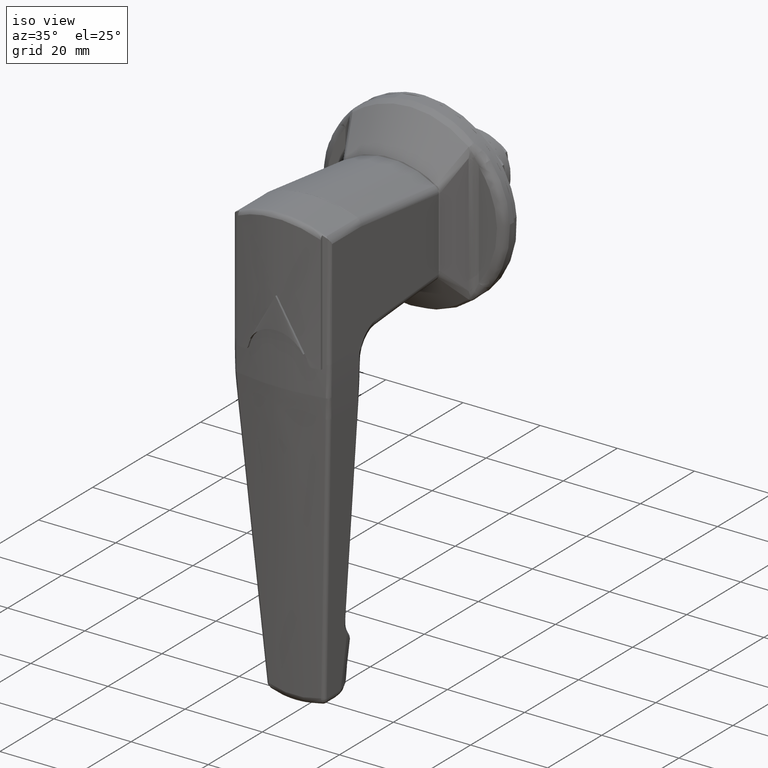
[diagram: clean part render]
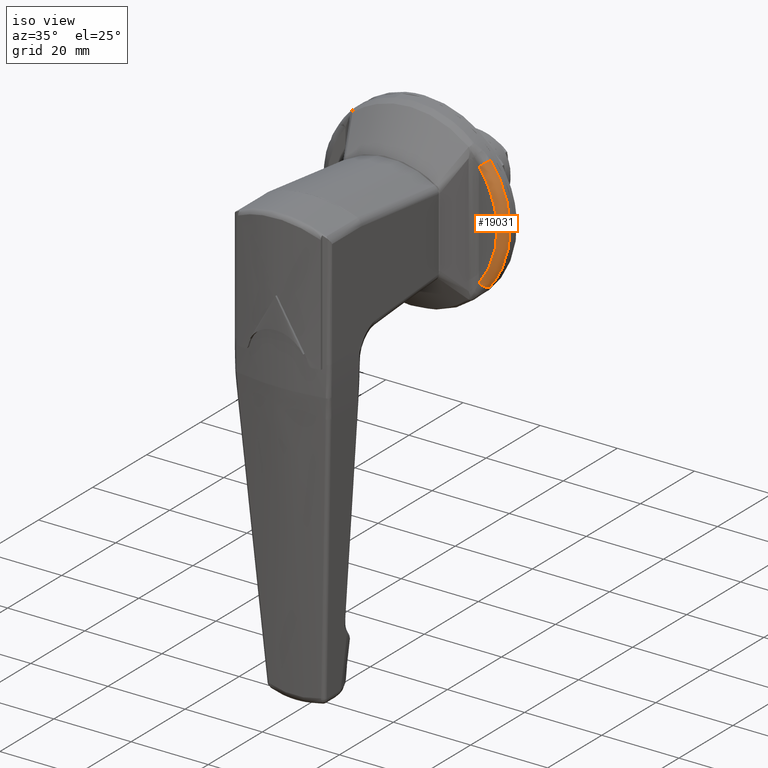
[diagram: same view with one face highlighted and labeled with its STEP entity id]
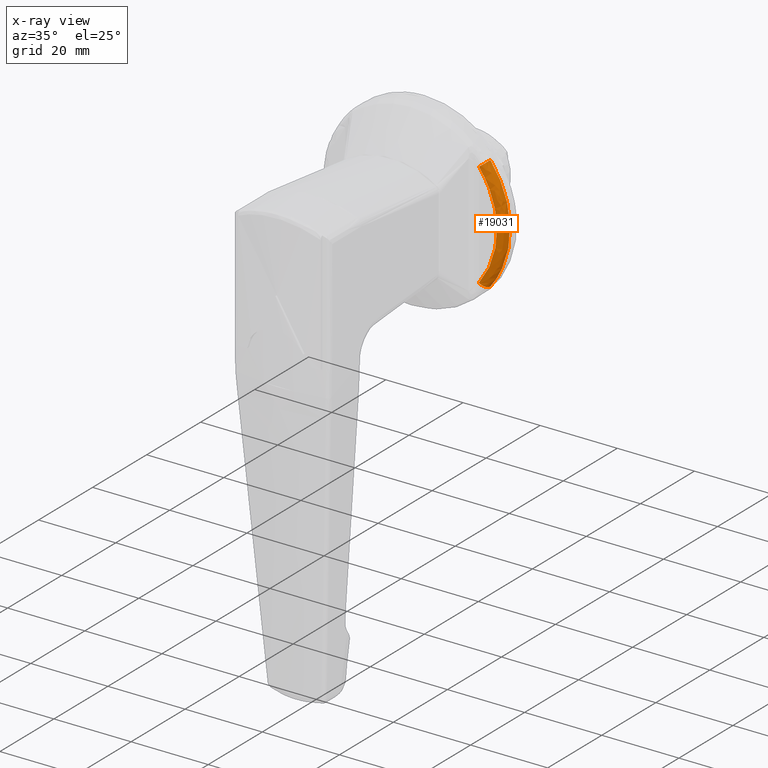
[diagram: x-ray of the same camera — body ghosted, the highlighted face saturated]
A machine part, iso view. The second image highlights one B-rep face of the part: STEP entity #19031.
The next image is the same camera in x-ray: the body ghosted, the highlighted face saturated — about 0% of this face is hidden behind the body in this view.
In plain terms, the highlighted face is a freeform B-spline surface patch.
Its self-contained STEP definition (entity closure, byte-faithful):
#15714=CARTESIAN_POINT('',(-2.500000000000000,-23.977157182302481,1.046868403932756));
#15715=VERTEX_POINT('',#15714);
#15721=CARTESIAN_POINT('',(-2.500000000000000,-18.877897728856649,-14.819749570719379));
#15722=VERTEX_POINT('',#15721);
#15723=CARTESIAN_POINT('',(-2.500000000000000,-23.977157182302484,1.046868403932756));
#15724=CARTESIAN_POINT('',(-2.500000000000000,-24.364748822760749,-7.830413259069376));
#15725=CARTESIAN_POINT('',(-2.500000000000000,-18.877897728856649,-14.819749570719379));
#15733=(BOUNDED_CURVE()B_SPLINE_CURVE(2,(#15723,#15724,#15725),.UNSPECIFIED.,.F.,.U.)B_SPLINE_CURVE_WITH_KNOTS((3,3),(0.468433952568478,1.0),.UNSPECIFIED.)CURVE()GEOMETRIC_REPRESENTATION_ITEM()RATIONAL_B_SPLINE_CURVE((0.893714847788104,0.886552680875156,1.0))REPRESENTATION_ITEM(''));
#15734=EDGE_CURVE('',#15715,#15722,#15733,.T.);
#15989=CARTESIAN_POINT('',(-2.500000000000000,-18.877897728162552,14.819749571603561));
#15990=VERTEX_POINT('',#15989);
#16002=CARTESIAN_POINT('',(-2.500000000000000,-18.877897728162552,14.819749571603561));
#16003=CARTESIAN_POINT('',(-2.500000000000000,-23.640711594829366,8.752716344166684));
#16004=CARTESIAN_POINT('',(-2.500000000000000,-23.977157182302488,1.046868403932756));
#16012=(BOUNDED_CURVE()B_SPLINE_CURVE(2,(#16002,#16003,#16004),.UNSPECIFIED.,.F.,.U.)B_SPLINE_CURVE_WITH_KNOTS((3,3),(0.0,0.468433952568478),.UNSPECIFIED.)CURVE()GEOMETRIC_REPRESENTATION_ITEM()RATIONAL_B_SPLINE_CURVE((1.0,0.900026391146071,0.893714847788104))REPRESENTATION_ITEM(''));
#16013=EDGE_CURVE('',#15990,#15715,#16012,.T.);
#18803=CARTESIAN_POINT('',(-4.500000000000000,-17.304739584785249,-13.584770439826100));
#18804=VERTEX_POINT('',#18803);
#18805=CARTESIAN_POINT('',(-2.500000000000000,-18.877897728856620,-14.819749570719370));
#18806=CARTESIAN_POINT('',(-4.500000000000002,-18.877897728856617,-14.819749570719377));
#18807=CARTESIAN_POINT('',(-4.500000000000001,-17.304739584785249,-13.584770439826100));
#18815=(BOUNDED_CURVE()B_SPLINE_CURVE(2,(#18805,#18806,#18807),.UNSPECIFIED.,.F.,.U.)CURVE()GEOMETRIC_REPRESENTATION_ITEM()QUASI_UNIFORM_CURVE()RATIONAL_B_SPLINE_CURVE((1.0,0.707106781186548,1.0))REPRESENTATION_ITEM(''));
#18816=EDGE_CURVE('',#15722,#18804,#18815,.T.);
#18981=CARTESIAN_POINT('',(-2.360551457042045,-17.935423397747378,-15.940105902498191));
#18982=CARTESIAN_POINT('',(-2.360551457042046,-32.102191423958956,0.000000410594329));
#18983=CARTESIAN_POINT('',(-2.360551457042046,-17.935422989992215,15.940106361294463));
#18984=CARTESIAN_POINT('',(-4.654672073317955,-18.055275854892908,-16.046624762812023));
#18985=CARTESIAN_POINT('',(-4.654672073317956,-32.316712510893574,0.000000413338104));
#18986=CARTESIAN_POINT('',(-4.654672073317954,-18.055275444412935,16.046625224674187));
#18987=CARTESIAN_POINT('',(-4.495184659409166,-16.340465654535766,-14.522587354260528));
#18988=CARTESIAN_POINT('',(-4.495184659409167,-29.247414168344505,0.000000374081080));
#18989=CARTESIAN_POINT('',(-4.495184659409166,-16.340465283041375,14.522587772257067));
#18997=(BOUNDED_SURFACE()B_SPLINE_SURFACE(2,2,((#18981,#18984,#18987),(#18982,#18985,#18988),(#18983,#18986,#18989)),.UNSPECIFIED.,.F.,.F.,.U.)B_SPLINE_SURFACE_WITH_KNOTS((3,3),(3,3),(0.0,36.487468679805517),(0.0,3.644741586489368),.UNSPECIFIED.)GEOMETRIC_REPRESENTATION_ITEM()RATIONAL_B_SPLINE_SURFACE(((0.842583616226027,0.554461898885857,0.847276896351602),(0.629798303543244,0.414438586952068,0.633306346904423),(0.842583624419761,0.554461904277741,0.847276904590976)))REPRESENTATION_ITEM('')SURFACE());
#18998=CARTESIAN_POINT('',(-4.500000000000000,-17.304739584149001,13.584770440636600));
#18999=VERTEX_POINT('',#18998);
#19000=CARTESIAN_POINT('',(-2.500000000000000,-18.877897728162530,14.819749571603550));
#19001=CARTESIAN_POINT('',(-4.500000000000002,-18.877897728162537,14.819749571603559));
#19002=CARTESIAN_POINT('',(-4.500000000000001,-17.304739584149001,13.584770440636600));
#19010=(BOUNDED_CURVE()B_SPLINE_CURVE(2,(#19000,#19001,#19002),.UNSPECIFIED.,.F.,.U.)CURVE()GEOMETRIC_REPRESENTATION_ITEM()QUASI_UNIFORM_CURVE()RATIONAL_B_SPLINE_CURVE((1.0,0.707106781186548,1.0))REPRESENTATION_ITEM(''));
#19011=EDGE_CURVE('',#15990,#18999,#19010,.T.);
#19012=ORIENTED_EDGE('',*,*,#19011,.T.);
#19013=CARTESIAN_POINT('',(-4.500000000000000,-17.304739584785249,-13.584770439826100));
#19014=CARTESIAN_POINT('',(-4.500000000000000,-27.969216042664154,6.549813E-010));
#19015=CARTESIAN_POINT('',(-4.500000000000000,-17.304739584149001,13.584770440636600));
#19023=(BOUNDED_CURVE()B_SPLINE_CURVE(2,(#19013,#19014,#19015),.UNSPECIFIED.,.F.,.U.)CURVE()GEOMETRIC_REPRESENTATION_ITEM()QUASI_UNIFORM_CURVE()RATIONAL_B_SPLINE_CURVE((1.0,0.786579072021227,1.0))REPRESENTATION_ITEM(''));
#19024=EDGE_CURVE('',#18804,#18999,#19023,.T.);
#19025=ORIENTED_EDGE('',*,*,#19024,.F.);
#19026=ORIENTED_EDGE('',*,*,#18816,.F.);
#19027=ORIENTED_EDGE('',*,*,#15734,.F.);
#19028=ORIENTED_EDGE('',*,*,#16013,.F.);
#19029=EDGE_LOOP('',(#19012,#19025,#19026,#19027,#19028));
#19030=FACE_OUTER_BOUND('',#19029,.T.);
#19031=ADVANCED_FACE('',(#19030),#18997,.T.);